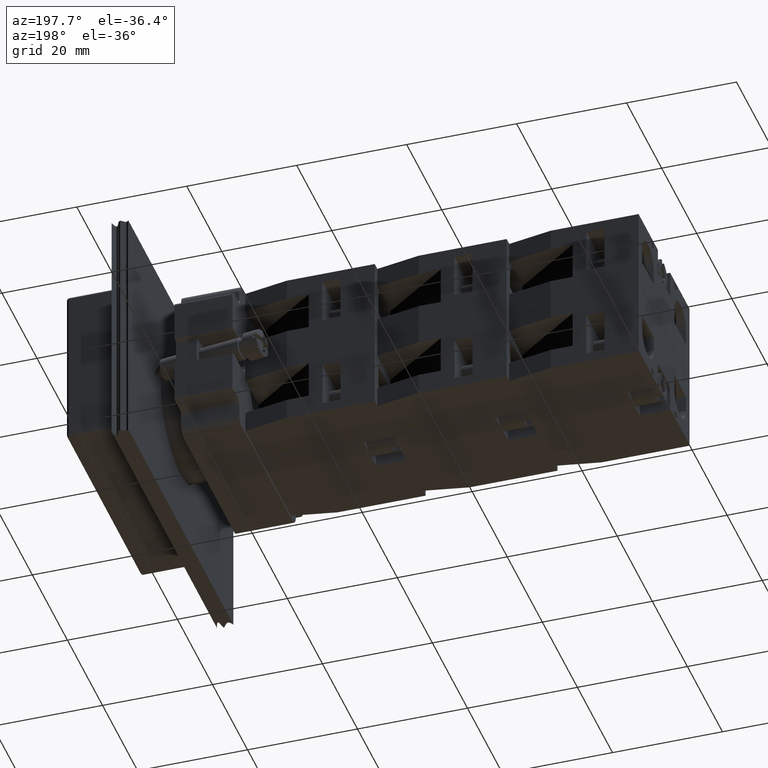
[diagram: clean part render]
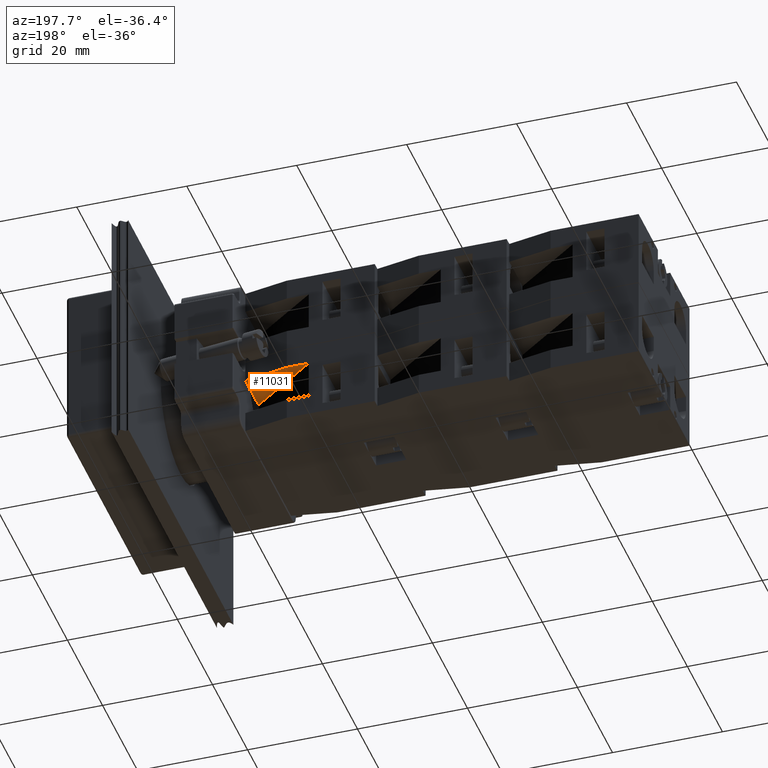
[diagram: same view with one face highlighted and labeled with its STEP entity id]
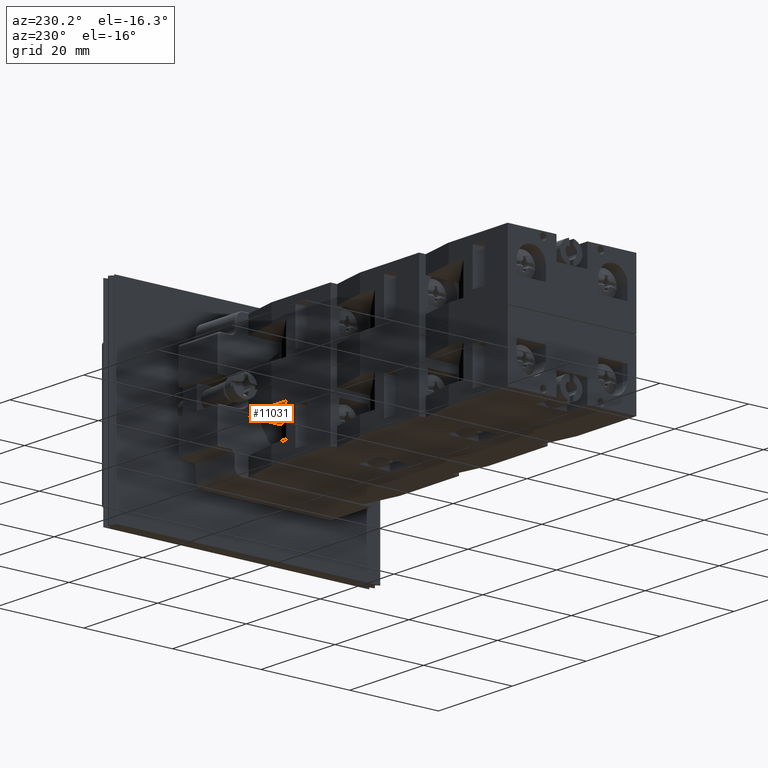
[diagram: same view with one face highlighted and labeled with its STEP entity id]
A machine part, auxiliary view. The second image highlights one B-rep face of the part: STEP entity #11031.
A second angle (auxiliary view) of the same face is appended — the face is thin or edge-on in the first view.
In plain terms, the highlighted face is a freeform B-spline surface patch.
Its self-contained STEP definition (entity closure, byte-faithful):
#10975=CARTESIAN_POINT('',(-44.936741828918457,11.797073323279610,3.850000000000001));
#10976=VERTEX_POINT('',#10975);
#10977=CARTESIAN_POINT('',(-35.936741828918450,-0.202926676720384,3.850000000000001));
#10978=VERTEX_POINT('',#10977);
#10979=CARTESIAN_POINT('',(-44.936741828918457,11.797073323279610,3.850000000000001));
#10980=DIRECTION('',(0.600000000000000,-0.800000000000000,0.0));
#10981=VECTOR('',#10980,15.0);
#10982=LINE('',#10979,#10981);
#10983=EDGE_CURVE('',#10976,#10978,#10982,.T.);
#11001=CARTESIAN_POINT('',(-35.936741828918443,11.797073323279621,3.850000000000001));
#11002=CARTESIAN_POINT('',(-44.936741828918478,11.797073323279610,3.850000000000001));
#11003=CARTESIAN_POINT('',(-35.936741828918429,-0.202926676720391,3.850000000000001));
#11004=CARTESIAN_POINT('',(-44.936741828918471,-0.202926676720402,3.850000000000001));
#11005=B_SPLINE_SURFACE_WITH_KNOTS('',1,1,((#11001,#11003),(#11002,#11004)),.UNSPECIFIED.,.F.,.F.,.U.,(2,2),(2,2),(0.0,9.000000000000036),(0.0,12.000000000000012),.UNSPECIFIED.);
#11006=CARTESIAN_POINT('',(-43.436741828918457,-0.202926676720391,3.850000000000000));
#11007=VERTEX_POINT('',#11006);
#11008=CARTESIAN_POINT('',(-44.936741828918457,7.797073323279618,3.850000000000000));
#11009=VERTEX_POINT('',#11008);
#11010=CARTESIAN_POINT('',(-43.436741828918457,-0.202926676720391,3.850000000000000));
#11011=DIRECTION('',(-0.184288535050185,0.982872186934322,0.0));
#11012=VECTOR('',#11011,8.139410298049864);
#11013=LINE('',#11010,#11012);
#11014=EDGE_CURVE('',#11007,#11009,#11013,.T.);
#11015=ORIENTED_EDGE('',*,*,#11014,.F.);
#11016=CARTESIAN_POINT('',(-35.936741828918450,-0.202926676720384,3.850000000000001));
#11017=DIRECTION('',(-1.0,0.0,0.0));
#11018=VECTOR('',#11017,7.500000000000007);
#11019=LINE('',#11016,#11018);
#11020=EDGE_CURVE('',#10978,#11007,#11019,.T.);
#11021=ORIENTED_EDGE('',*,*,#11020,.F.);
#11022=ORIENTED_EDGE('',*,*,#10983,.F.);
#11023=CARTESIAN_POINT('',(-44.936741828918457,7.797073323279618,3.850000000000000));
#11024=DIRECTION('',(0.0,1.0,0.0));
#11025=VECTOR('',#11024,3.999999999999992);
#11026=LINE('',#11023,#11025);
#11027=EDGE_CURVE('',#11009,#10976,#11026,.T.);
#11028=ORIENTED_EDGE('',*,*,#11027,.F.);
#11029=EDGE_LOOP('',(#11015,#11021,#11022,#11028));
#11030=FACE_OUTER_BOUND('',#11029,.T.);
#11031=ADVANCED_FACE('',(#11030),#11005,.T.);